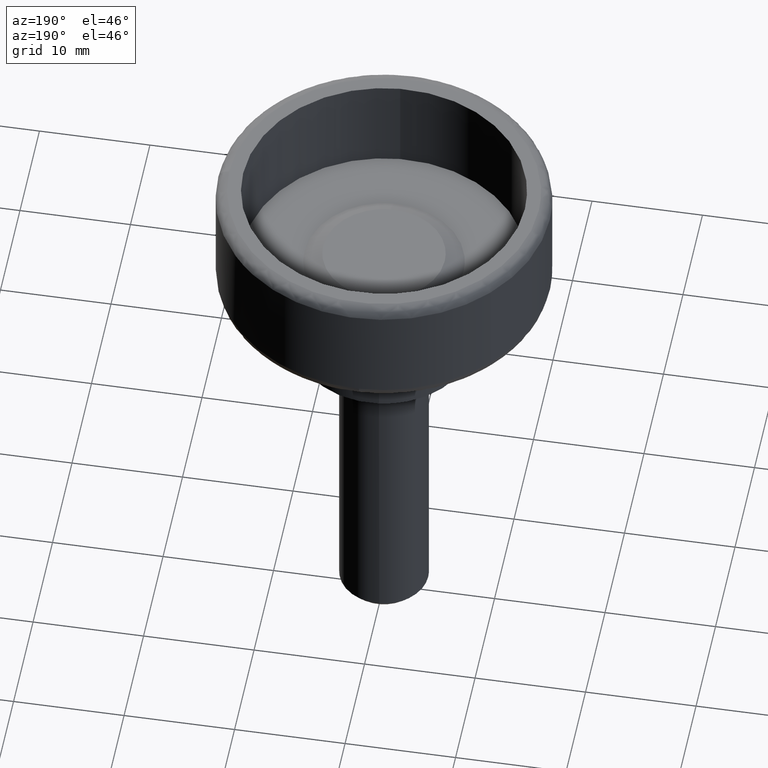
[diagram: clean part render]
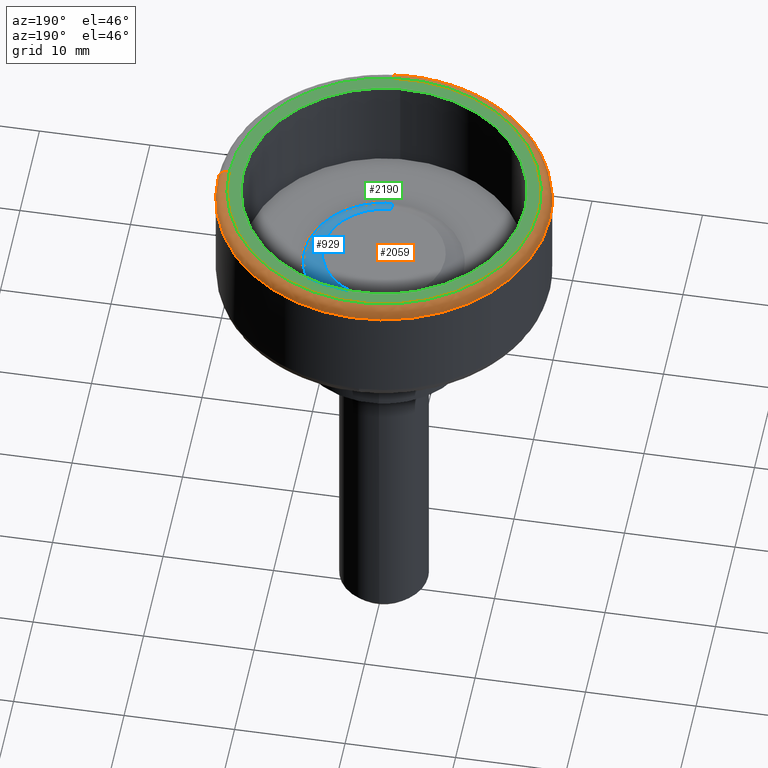
[diagram: same view with three faces highlighted in distinct colors, each labeled with its STEP entity id]
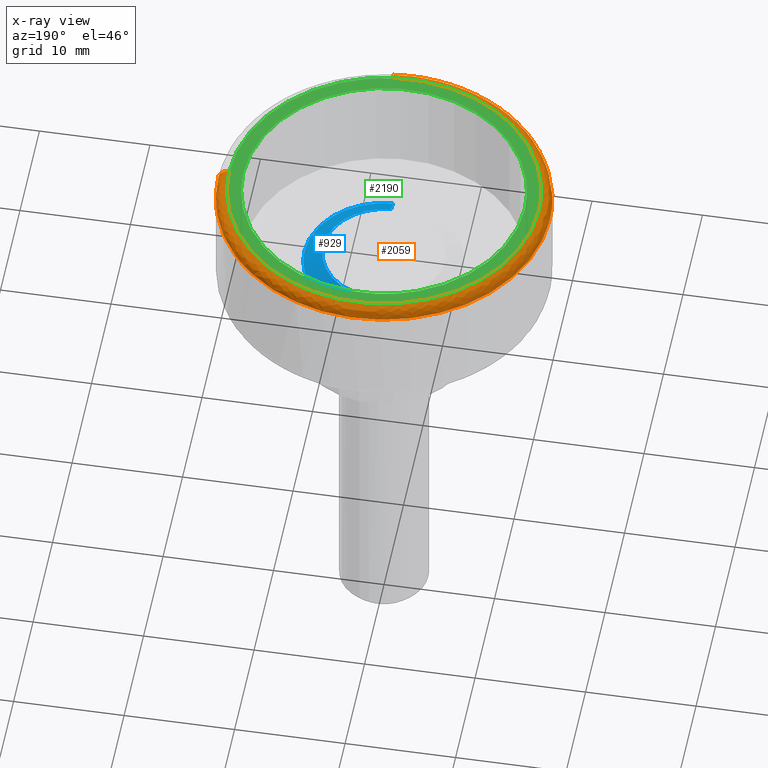
[diagram: x-ray of the same camera — body ghosted, the three highlighted faces saturated]
A machine part, auxiliary view with three faces highlighted in distinct colors.
The next image is the same camera in x-ray (body ghosted, the three faces saturated) — at least one of them is partly hidden behind the body in this view.
Their STEP definitions:

[orange] entity #2059 — the highlighted face is a freeform B-spline surface patch.
#1614=CARTESIAN_POINT('',(-11.358575083917650,9.797079772207848,18.500000000000000));
#1615=VERTEX_POINT('',#1614);
#1621=CARTESIAN_POINT('',(15.0,8.658941E-016,18.500000000025519));
#1622=VERTEX_POINT('',#1621);
#1623=CARTESIAN_POINT('',(-11.358575083917653,9.797079772207848,18.500000000000000));
#1624=CARTESIAN_POINT('',(-6.870915484126456,14.999999999999998,18.500000000000000));
#1625=CARTESIAN_POINT('',(0.0,15.0,18.500000000000000));
#1626=CARTESIAN_POINT('',(14.999999999999996,14.999999999999996,18.500000000000004));
#1627=CARTESIAN_POINT('',(15.0,8.658941E-016,18.500000000025519));
#1635=(BOUNDED_CURVE()B_SPLINE_CURVE(2,(#1623,#1624,#1625,#1626,#1627),.UNSPECIFIED.,.F.,.U.)B_SPLINE_CURVE_WITH_KNOTS((3,2,3),(0.113878074914717,0.250000000000000,0.500000000000000),.UNSPECIFIED.)CURVE()GEOMETRIC_REPRESENTATION_ITEM()RATIONAL_B_SPLINE_CURVE((0.854712753032375,0.840523244842751,1.0,0.707106781186547,1.0))REPRESENTATION_ITEM(''));
#1636=EDGE_CURVE('',#1615,#1622,#1635,.T.);
#1638=CARTESIAN_POINT('',(1.731963439911508,-14.899674581775599,18.500000000022730));
#1639=VERTEX_POINT('',#1638);
#1653=CARTESIAN_POINT('',(-9.131419963642561,-11.900301233480880,18.500000000000000));
#1654=VERTEX_POINT('',#1653);
#1655=CARTESIAN_POINT('',(1.731963439911508,-14.899674581775599,18.500000000022730));
#1656=CARTESIAN_POINT('',(0.868887436473609,-14.999999999999996,18.499999999999996));
#1657=CARTESIAN_POINT('',(0.0,-15.0,18.500000000000000));
#1658=CARTESIAN_POINT('',(-5.091812848703743,-15.000000000000004,18.500000000000004));
#1659=CARTESIAN_POINT('',(-9.131419963642561,-11.900301233480885,18.500000000000004));
#1667=(BOUNDED_CURVE()B_SPLINE_CURVE(2,(#1655,#1656,#1657,#1658,#1659),.UNSPECIFIED.,.F.,.U.)B_SPLINE_CURVE_WITH_KNOTS((3,2,3),(0.729999999999877,0.750000000000000,0.855220491655621),.UNSPECIFIED.)CURVE()GEOMETRIC_REPRESENTATION_ITEM()RATIONAL_B_SPLINE_CURVE((0.956886118190418,0.976568542494780,1.0,0.876726526055405,0.857220216403183))REPRESENTATION_ITEM(''));
#1668=EDGE_CURVE('',#1639,#1654,#1667,.T.);
#1774=CARTESIAN_POINT('',(-15.0,0.0,18.500000000000000));
#1775=VERTEX_POINT('',#1774);
#1776=CARTESIAN_POINT('',(-9.131419963642561,-11.900301233480885,18.500000000000004));
#1777=CARTESIAN_POINT('',(-15.000000000000005,-7.397182543387690,18.499999999999996));
#1778=CARTESIAN_POINT('',(-15.0,0.0,18.500000000000000));
#1786=(BOUNDED_CURVE()B_SPLINE_CURVE(2,(#1776,#1777,#1778),.UNSPECIFIED.,.F.,.U.)B_SPLINE_CURVE_WITH_KNOTS((3,3),(0.855220491655621,1.0),.UNSPECIFIED.)CURVE()GEOMETRIC_REPRESENTATION_ITEM()RATIONAL_B_SPLINE_CURVE((0.857220216403183,0.830380255131142,1.0))REPRESENTATION_ITEM(''));
#1787=EDGE_CURVE('',#1654,#1775,#1786,.T.);
#1789=CARTESIAN_POINT('',(-15.0,0.0,18.500000000000000));
#1790=CARTESIAN_POINT('',(-14.999999999999998,5.575270400848212,18.500000000000000));
#1791=CARTESIAN_POINT('',(-11.358575083917653,9.797079772207848,18.500000000000004));
#1799=(BOUNDED_CURVE()B_SPLINE_CURVE(2,(#1789,#1790,#1791),.UNSPECIFIED.,.F.,.U.)B_SPLINE_CURVE_WITH_KNOTS((3,3),(0.0,0.113878074914717),.UNSPECIFIED.)CURVE()GEOMETRIC_REPRESENTATION_ITEM()RATIONAL_B_SPLINE_CURVE((1.0,0.866583536343797,0.854712753032375))REPRESENTATION_ITEM(''));
#1800=EDGE_CURVE('',#1775,#1615,#1799,.T.);
#1956=CARTESIAN_POINT('',(1.608490085502505,-13.837475925613678,19.497592317910893));
#1957=CARTESIAN_POINT('',(0.806943602645560,-13.930648956423317,19.497592317910883));
#1958=CARTESIAN_POINT('',(1.705956E-015,-13.930648956423312,19.497592317910890));
#1959=CARTESIAN_POINT('',(-13.930648956423306,-13.930648956423312,19.497592317910886));
#1960=CARTESIAN_POINT('',(-13.930648956423312,-2.558934E-015,19.497592317910890));
#1961=CARTESIAN_POINT('',(-13.930648956423312,13.930648956423306,19.497592317910886));
#1962=CARTESIAN_POINT('',(-3.411912E-015,13.930648956423312,19.497592317910890));
#1963=CARTESIAN_POINT('',(13.930648956423305,13.930648956423312,19.497592317910886));
#1964=CARTESIAN_POINT('',(13.930648956423312,4.264890E-015,19.497592317910890));
#1965=CARTESIAN_POINT('',(1.740937863660567,-14.976894165229773,19.577336230795776));
#1966=CARTESIAN_POINT('',(0.873389699039046,-15.077739335909104,19.577336230795790));
#1967=CARTESIAN_POINT('',(1.846430E-015,-15.077739335909094,19.577336230795765));
#1968=CARTESIAN_POINT('',(-15.077739335909094,-15.077739335909097,19.577336230795773));
#1969=CARTESIAN_POINT('',(-15.077739335909094,-2.769644E-015,19.577336230795765));
#1970=CARTESIAN_POINT('',(-15.077739335909097,15.077739335909092,19.577336230795773));
#1971=CARTESIAN_POINT('',(-3.692859E-015,15.077739335909094,19.577336230795765));
#1972=CARTESIAN_POINT('',(15.077739335909092,15.077739335909097,19.577336230795773));
#1973=CARTESIAN_POINT('',(15.077739335909094,4.616074E-015,19.577336230795765));
#1974=CARTESIAN_POINT('',(1.731680755297319,-14.897257358468101,18.430275763643074));
#1975=CARTESIAN_POINT('',(0.868745614229294,-14.997566303994097,18.430275763643056));
#1976=CARTESIAN_POINT('',(1.836611E-015,-14.997566303994093,18.430275763643053));
#1977=CARTESIAN_POINT('',(-14.997566303994088,-14.997566303994089,18.430275763643053));
#1978=CARTESIAN_POINT('',(-14.997566303994093,-2.754917E-015,18.430275763643053));
#1979=CARTESIAN_POINT('',(-14.997566303994089,14.997566303994088,18.430275763643053));
#1980=CARTESIAN_POINT('',(-3.673223E-015,14.997566303994093,18.430275763643053));
#1981=CARTESIAN_POINT('',(14.997566303994084,14.997566303994093,18.430275763643053));
#1982=CARTESIAN_POINT('',(14.997566303994093,4.591529E-015,18.430275763643053));
#1990=(BOUNDED_SURFACE()B_SPLINE_SURFACE(2,2,((#1956,#1965,#1974),(#1957,#1966,#1975),(#1958,#1967,#1976),(#1959,#1968,#1977),(#1960,#1969,#1978),(#1961,#1970,#1979),(#1962,#1971,#1980),(#1963,#1972,#1981),(#1964,#1973,#1982)),.UNSPECIFIED.,.F.,.F.,.U.)B_SPLINE_SURFACE_WITH_KNOTS((3,2,2,2,3),(3,3),(0.0,1.987900621213733,26.836682084030070,51.685463546846400,76.534245009662726),(0.0,1.822370955941204),.UNSPECIFIED.)GEOMETRIC_REPRESENTATION_ITEM()RATIONAL_B_SPLINE_SURFACE(((0.876475968511781,0.573569834607657,0.871620865425741),(0.894504402179793,0.585367723070879,0.889549433373434),(0.915966819314443,0.599412825832915,0.910892962767396),(0.647686349279116,0.423848873876645,0.644098590907931),(0.915966819314443,0.599412825832915,0.910892962767396),(0.647686349279116,0.423848873876645,0.644098590907931),(0.915966819314443,0.599412825832915,0.910892962767396),(0.647686349279116,0.423848873876645,0.644098590907931),(0.915966819314443,0.599412825832915,0.910892962767396)))REPRESENTATION_ITEM('')SURFACE());
#1991=ORIENTED_EDGE('',*,*,#1787,.F.);
#1992=ORIENTED_EDGE('',*,*,#1668,.F.);
#1993=CARTESIAN_POINT('',(1.616499210730571,-13.906362944056070,19.500000000000000));
#1994=VERTEX_POINT('',#1993);
#1995=CARTESIAN_POINT('',(1.616499210730571,-13.906362944056070,19.500000000000000));
#1996=CARTESIAN_POINT('',(1.731963439900862,-14.899674581731063,19.499999997849404));
#1997=CARTESIAN_POINT('',(1.731963439911508,-14.899674581775601,18.500000000022734));
#2005=(BOUNDED_CURVE()B_SPLINE_CURVE(2,(#1995,#1996,#1997),.UNSPECIFIED.,.F.,.U.)B_SPLINE_CURVE_WITH_KNOTS((3,3),(-1.736413118846382,-0.276558718062040),.UNSPECIFIED.)CURVE()GEOMETRIC_REPRESENTATION_ITEM()RATIONAL_B_SPLINE_CURVE((0.850203275535754,0.599621899597622,0.845789311881698))REPRESENTATION_ITEM(''));
#2006=EDGE_CURVE('',#1994,#1639,#2005,.T.);
#2007=ORIENTED_EDGE('',*,*,#2006,.F.);
#2008=CARTESIAN_POINT('',(-14.0,0.0,19.500000000000000));
#2009=VERTEX_POINT('',#2008);
#2010=CARTESIAN_POINT('',(1.616499210730571,-13.906362944056072,19.500000000000007));
#2011=CARTESIAN_POINT('',(0.810961607397933,-14.0,19.500000000000004));
#2012=CARTESIAN_POINT('',(0.0,-14.0,19.500000000000000));
#2013=CARTESIAN_POINT('',(-13.999999999999998,-13.999999999999998,19.500000000000007));
#2014=CARTESIAN_POINT('',(-14.0,0.0,19.500000000000000));
#2022=(BOUNDED_CURVE()B_SPLINE_CURVE(2,(#2010,#2011,#2012,#2013,#2014),.UNSPECIFIED.,.F.,.U.)B_SPLINE_CURVE_WITH_KNOTS((3,2,3),(0.729999999999334,0.750000000000000,1.0),.UNSPECIFIED.)CURVE()GEOMETRIC_REPRESENTATION_ITEM()RATIONAL_B_SPLINE_CURVE((0.956886118189349,0.976568542494143,1.0,0.707106781186547,1.0))REPRESENTATION_ITEM(''));
#2023=EDGE_CURVE('',#1994,#2009,#2022,.T.);
#2024=ORIENTED_EDGE('',*,*,#2023,.T.);
#2025=CARTESIAN_POINT('',(14.000000000088900,6.587210E-017,19.500000000000000));
#2026=VERTEX_POINT('',#2025);
#2027=CARTESIAN_POINT('',(-14.0,0.0,19.500000000000000));
#2028=CARTESIAN_POINT('',(-13.999999999999998,13.999999999999998,19.500000000000007));
#2029=CARTESIAN_POINT('',(0.0,14.0,19.500000000000000));
#2030=CARTESIAN_POINT('',(13.999999999999998,13.999999999999998,19.500000000000007));
#2031=CARTESIAN_POINT('',(14.000000000088900,6.587210E-017,19.500000000000000));
#2039=(BOUNDED_CURVE()B_SPLINE_CURVE(2,(#2027,#2028,#2029,#2030,#2031),.UNSPECIFIED.,.F.,.U.)B_SPLINE_CURVE_WITH_KNOTS((3,2,3),(0.0,0.250000000000000,0.500000000000000),.UNSPECIFIED.)CURVE()GEOMETRIC_REPRESENTATION_ITEM()RATIONAL_B_SPLINE_CURVE((1.0,0.707106781186547,1.0,0.707106781186547,1.0))REPRESENTATION_ITEM(''));
#2040=EDGE_CURVE('',#2009,#2026,#2039,.T.);
#2041=ORIENTED_EDGE('',*,*,#2040,.T.);
#2042=CARTESIAN_POINT('',(14.000000000088901,6.587210E-017,19.499999999999996));
#2043=CARTESIAN_POINT('',(14.999999999948944,1.408176E-015,19.499999999644398));
#2044=CARTESIAN_POINT('',(14.999999999999998,8.658941E-016,18.500000000025526));
#2052=(BOUNDED_CURVE()B_SPLINE_CURVE(2,(#2042,#2043,#2044),.UNSPECIFIED.,.F.,.U.)B_SPLINE_CURVE_WITH_KNOTS((3,3),(-1.736413120704137,-0.276558718067789),.UNSPECIFIED.)CURVE()GEOMETRIC_REPRESENTATION_ITEM()RATIONAL_B_SPLINE_CURVE((0.888510408930513,0.626638727311823,0.883897567120141))REPRESENTATION_ITEM(''));
#2053=EDGE_CURVE('',#2026,#1622,#2052,.T.);
#2054=ORIENTED_EDGE('',*,*,#2053,.T.);
#2055=ORIENTED_EDGE('',*,*,#1636,.F.);
#2056=ORIENTED_EDGE('',*,*,#1800,.F.);
#2057=EDGE_LOOP('',(#1991,#1992,#2007,#2024,#2041,#2054,#2055,#2056));
#2058=FACE_OUTER_BOUND('',#2057,.T.);
#2059=ADVANCED_FACE('',(#2058),#1990,.T.);

[blue] entity #929 — the highlighted face is a freeform B-spline surface patch.
#827=CARTESIAN_POINT('',(-0.644171835639259,5.419349490129707,11.525000000000006));
#828=CARTESIAN_POINT('',(-0.489072381541763,5.437785411310763,11.525000000000002));
#829=CARTESIAN_POINT('',(-0.333172404511482,5.447320662387335,11.525000000000000));
#830=CARTESIAN_POINT('',(5.114148257875854,5.780493066898817,11.525000000000002));
#831=CARTESIAN_POINT('',(5.447320662387335,0.333172404511482,11.525000000000000));
#832=CARTESIAN_POINT('',(5.780493066898817,-5.114148257875854,11.525000000000002));
#833=CARTESIAN_POINT('',(0.333172404511482,-5.447320662387335,11.525000000000000));
#834=CARTESIAN_POINT('',(-0.854988355875896,7.192926567310616,10.474375000000004));
#835=CARTESIAN_POINT('',(-0.649129887809731,7.217395966727942,10.474374999999997));
#836=CARTESIAN_POINT('',(-0.442208911654458,7.230051795793695,10.474375000000000));
#837=CARTESIAN_POINT('',(6.787842884139237,7.672260707448152,10.474374999999998));
#838=CARTESIAN_POINT('',(7.230051795793695,0.442208911654458,10.474375000000000));
#839=CARTESIAN_POINT('',(7.672260707448152,-6.787842884139237,10.474374999999998));
#840=CARTESIAN_POINT('',(0.442208911654458,-7.230051795793695,10.474375000000000));
#848=(BOUNDED_SURFACE()B_SPLINE_SURFACE(2,1,((#827,#834),(#828,#835),(#829,#836),(#830,#837),(#831,#838),(#832,#839),(#833,#840)),.UNSPECIFIED.,.F.,.F.,.U.)B_SPLINE_SURFACE_WITH_KNOTS((3,2,2,3),(2,2),(0.0,0.480061092383547,12.481588401972200,24.483115711560849),(0.0,2.072156399630895),.UNSPECIFIED.)GEOMETRIC_REPRESENTATION_ITEM()RATIONAL_B_SPLINE_SURFACE(((0.977505800795127,0.977505800795127),(0.988284271247462,0.988284271247462),(1.0,1.0),(0.707106781186548,0.707106781186548),(1.0,1.0),(0.707106781186548,0.707106781186548),(1.0,1.0)))REPRESENTATION_ITEM('')SURFACE());
#849=CARTESIAN_POINT('',(-0.649188293313026,5.461552396483706,11.499999998945910));
#850=VERTEX_POINT('',#849);
#851=CARTESIAN_POINT('',(5.500000000000000,0.0,11.500000000000000));
#852=VERTEX_POINT('',#851);
#853=CARTESIAN_POINT('',(-0.649188293313026,5.461552396483706,11.499999998945905));
#854=CARTESIAN_POINT('',(-0.325732660601164,5.499999999999999,11.500000000000005));
#855=CARTESIAN_POINT('',(0.0,5.500000000000000,11.500000000000000));
#856=CARTESIAN_POINT('',(5.500000000000001,5.500000000000001,11.500000000000000));
#857=CARTESIAN_POINT('',(5.500000000000000,0.0,11.500000000000000));
#865=(BOUNDED_CURVE()B_SPLINE_CURVE(2,(#853,#854,#855,#856,#857),.UNSPECIFIED.,.F.,.U.)B_SPLINE_CURVE_WITH_KNOTS((3,2,3),(0.229562473361583,0.250000000000000,0.500000000000000),.UNSPECIFIED.)CURVE()GEOMETRIC_REPRESENTATION_ITEM()RATIONAL_B_SPLINE_CURVE((0.956026753885919,0.976055948153153,1.0,0.707106781186548,1.0))REPRESENTATION_ITEM(''));
#866=EDGE_CURVE('',#850,#852,#865,.T.);
#867=ORIENTED_EDGE('',*,*,#866,.T.);
#868=CARTESIAN_POINT('',(0.335766967568114,-5.489741391331091,11.499999999989109));
#869=VERTEX_POINT('',#868);
#870=CARTESIAN_POINT('',(5.500000000000000,0.0,11.500000000000000));
#871=CARTESIAN_POINT('',(5.500000000000000,-5.173883367744748,11.499999999999998));
#872=CARTESIAN_POINT('',(0.335766967568114,-5.489741391331092,11.499999999989111));
#880=(BOUNDED_CURVE()B_SPLINE_CURVE(2,(#870,#871,#872),.UNSPECIFIED.,.F.,.U.)B_SPLINE_CURVE_WITH_KNOTS((3,3),(0.500000000000000,0.739332962234093),.UNSPECIFIED.)CURVE()GEOMETRIC_REPRESENTATION_ITEM()RATIONAL_B_SPLINE_CURVE((1.0,0.719603993292392,0.976072041656324))REPRESENTATION_ITEM(''));
#881=EDGE_CURVE('',#852,#869,#880,.T.);
#882=ORIENTED_EDGE('',*,*,#881,.T.);
#883=CARTESIAN_POINT('',(0.439549484806871,-7.186570548650710,10.499999999986610));
#884=VERTEX_POINT('',#883);
#885=CARTESIAN_POINT('',(0.335766967568114,-5.489741391331091,11.499999999989109));
#886=CARTESIAN_POINT('',(0.439549484806871,-7.186570548650710,10.499999999986610));
#887=QUASI_UNIFORM_CURVE('',1,(#885,#886),.UNSPECIFIED.,.F.,.U.);
#888=EDGE_CURVE('',#869,#884,#887,.T.);
#889=ORIENTED_EDGE('',*,*,#888,.T.);
#890=CARTESIAN_POINT('',(7.200000000000000,0.0,10.500000000000000));
#891=VERTEX_POINT('',#890);
#892=CARTESIAN_POINT('',(7.200000000000000,0.0,10.500000000000000));
#893=CARTESIAN_POINT('',(7.200000000000001,-6.773083681429209,10.500000000000002));
#894=CARTESIAN_POINT('',(0.439549484806871,-7.186570548650710,10.499999999986612));
#902=(BOUNDED_CURVE()B_SPLINE_CURVE(2,(#892,#893,#894),.UNSPECIFIED.,.F.,.U.)B_SPLINE_CURVE_WITH_KNOTS((3,3),(0.500000000000000,0.739332962234549),.UNSPECIFIED.)CURVE()GEOMETRIC_REPRESENTATION_ITEM()RATIONAL_B_SPLINE_CURVE((1.0,0.719603993291858,0.976072041657300))REPRESENTATION_ITEM(''));
#903=EDGE_CURVE('',#891,#884,#902,.T.);
#904=ORIENTED_EDGE('',*,*,#903,.F.);
#905=CARTESIAN_POINT('',(-0.849846489675516,7.149668589821403,10.499999999988050));
#906=VERTEX_POINT('',#905);
#907=CARTESIAN_POINT('',(-0.849846489675516,7.149668589821403,10.499999999988045));
#908=CARTESIAN_POINT('',(-0.426413661639736,7.200000000000001,10.500000000000004));
#909=CARTESIAN_POINT('',(0.0,7.200000000000000,10.500000000000000));
#910=CARTESIAN_POINT('',(7.200000000000000,7.200000000000000,10.500000000000000));
#911=CARTESIAN_POINT('',(7.200000000000000,0.0,10.500000000000000));
#919=(BOUNDED_CURVE()B_SPLINE_CURVE(2,(#907,#908,#909,#910,#911),.UNSPECIFIED.,.F.,.U.)B_SPLINE_CURVE_WITH_KNOTS((3,2,3),(0.229562473508815,0.250000000000000,0.500000000000000),.UNSPECIFIED.)CURVE()GEOMETRIC_REPRESENTATION_ITEM()RATIONAL_B_SPLINE_CURVE((0.956026754174500,0.976055948325646,1.0,0.707106781186547,1.0))REPRESENTATION_ITEM(''));
#920=EDGE_CURVE('',#906,#891,#919,.T.);
#921=ORIENTED_EDGE('',*,*,#920,.F.);
#922=CARTESIAN_POINT('',(-0.649188293313026,5.461552396483706,11.499999998945910));
#923=CARTESIAN_POINT('',(-0.849846489675516,7.149668589821403,10.499999999988050));
#924=QUASI_UNIFORM_CURVE('',1,(#922,#923),.UNSPECIFIED.,.F.,.U.);
#925=EDGE_CURVE('',#850,#906,#924,.T.);
#926=ORIENTED_EDGE('',*,*,#925,.F.);
#927=EDGE_LOOP('',(#867,#882,#889,#904,#921,#926));
#928=FACE_OUTER_BOUND('',#927,.T.);
#929=ADVANCED_FACE('',(#928),#848,.T.);

[green] entity #2190 — the highlighted face is a freeform B-spline surface patch.
#1069=CARTESIAN_POINT('',(0.778357585810537,-12.726219370594050,19.500000000000000));
#1070=VERTEX_POINT('',#1069);
#1076=CARTESIAN_POINT('',(12.750000000000000,0.0,19.500000000000000));
#1077=VERTEX_POINT('',#1076);
#1078=CARTESIAN_POINT('',(12.750000000000000,0.0,19.500000000000000));
#1079=CARTESIAN_POINT('',(12.750000000000000,-11.994013016430237,19.499999999999996));
#1080=CARTESIAN_POINT('',(0.778357585810537,-12.726219370594050,19.500000000000004));
#1088=(BOUNDED_CURVE()B_SPLINE_CURVE(2,(#1078,#1079,#1080),.UNSPECIFIED.,.F.,.U.)B_SPLINE_CURVE_WITH_KNOTS((3,3),(0.500000000000000,0.739333115360176),.UNSPECIFIED.)CURVE()GEOMETRIC_REPRESENTATION_ITEM()RATIONAL_B_SPLINE_CURVE((1.0,0.719603813894027,0.976072369834887))REPRESENTATION_ITEM(''));
#1089=EDGE_CURVE('',#1077,#1070,#1088,.T.);
#1091=CARTESIAN_POINT('',(-1.504926199215162,12.660872684566741,19.500000000000000));
#1092=VERTEX_POINT('',#1091);
#1093=CARTESIAN_POINT('',(-1.504926199215163,12.660872684566746,19.500000000000000));
#1094=CARTESIAN_POINT('',(-0.755102324826892,12.750000000000000,19.500000000000000));
#1095=CARTESIAN_POINT('',(0.0,12.750000000000000,19.500000000000000));
#1096=CARTESIAN_POINT('',(12.749999999999998,12.749999999999998,19.500000000000004));
#1097=CARTESIAN_POINT('',(12.750000000000000,0.0,19.500000000000000));
#1105=(BOUNDED_CURVE()B_SPLINE_CURVE(2,(#1093,#1094,#1095,#1096,#1097),.UNSPECIFIED.,.F.,.U.)B_SPLINE_CURVE_WITH_KNOTS((3,2,3),(0.229562610906883,0.250000000000000,0.500000000000000),.UNSPECIFIED.)CURVE()GEOMETRIC_REPRESENTATION_ITEM()RATIONAL_B_SPLINE_CURVE((0.956027023480514,0.976056109297496,1.0,0.707106781186548,1.0))REPRESENTATION_ITEM(''));
#1106=EDGE_CURVE('',#1092,#1077,#1105,.T.);
#1150=CARTESIAN_POINT('',(-12.750000000000000,0.0,19.500000000000000));
#1151=VERTEX_POINT('',#1150);
#1152=CARTESIAN_POINT('',(-12.750000000000000,0.0,19.500000000000000));
#1153=CARTESIAN_POINT('',(-12.749999999999998,11.324234476721555,19.500000000000004));
#1154=CARTESIAN_POINT('',(-1.504926199215163,12.660872684566746,19.500000000000000));
#1162=(BOUNDED_CURVE()B_SPLINE_CURVE(2,(#1152,#1153,#1154),.UNSPECIFIED.,.F.,.U.)B_SPLINE_CURVE_WITH_KNOTS((3,3),(0.0,0.229562610906883),.UNSPECIFIED.)CURVE()GEOMETRIC_REPRESENTATION_ITEM()RATIONAL_B_SPLINE_CURVE((1.0,0.731050671889051,0.956027023480514))REPRESENTATION_ITEM(''));
#1163=EDGE_CURVE('',#1151,#1092,#1162,.T.);
#1165=CARTESIAN_POINT('',(0.778357585810537,-12.726219370594050,19.500000000000004));
#1166=CARTESIAN_POINT('',(0.389542069595348,-12.749999999999996,19.500000000000004));
#1167=CARTESIAN_POINT('',(0.0,-12.750000000000000,19.500000000000000));
#1168=CARTESIAN_POINT('',(-12.749999999999998,-12.749999999999998,19.500000000000004));
#1169=CARTESIAN_POINT('',(-12.750000000000000,0.0,19.500000000000000));
#1177=(BOUNDED_CURVE()B_SPLINE_CURVE(2,(#1165,#1166,#1167,#1168,#1169),.UNSPECIFIED.,.F.,.U.)B_SPLINE_CURVE_WITH_KNOTS((3,2,3),(0.739333115360176,0.750000000000000,1.0),.UNSPECIFIED.)CURVE()GEOMETRIC_REPRESENTATION_ITEM()RATIONAL_B_SPLINE_CURVE((0.976072369834887,0.987502967292520,1.0,0.707106781186548,1.0))REPRESENTATION_ITEM(''));
#1178=EDGE_CURVE('',#1070,#1151,#1177,.T.);
#1993=CARTESIAN_POINT('',(1.616499210730571,-13.906362944056070,19.500000000000000));
#1994=VERTEX_POINT('',#1993);
#2008=CARTESIAN_POINT('',(-14.0,0.0,19.500000000000000));
#2009=VERTEX_POINT('',#2008);
#2010=CARTESIAN_POINT('',(1.616499210730571,-13.906362944056072,19.500000000000007));
#2011=CARTESIAN_POINT('',(0.810961607397933,-14.0,19.500000000000004));
#2012=CARTESIAN_POINT('',(0.0,-14.0,19.500000000000000));
#2013=CARTESIAN_POINT('',(-13.999999999999998,-13.999999999999998,19.500000000000007));
#2014=CARTESIAN_POINT('',(-14.0,0.0,19.500000000000000));
#2022=(BOUNDED_CURVE()B_SPLINE_CURVE(2,(#2010,#2011,#2012,#2013,#2014),.UNSPECIFIED.,.F.,.U.)B_SPLINE_CURVE_WITH_KNOTS((3,2,3),(0.729999999999334,0.750000000000000,1.0),.UNSPECIFIED.)CURVE()GEOMETRIC_REPRESENTATION_ITEM()RATIONAL_B_SPLINE_CURVE((0.956886118189349,0.976568542494143,1.0,0.707106781186547,1.0))REPRESENTATION_ITEM(''));
#2023=EDGE_CURVE('',#1994,#2009,#2022,.T.);
#2025=CARTESIAN_POINT('',(14.000000000088900,6.587210E-017,19.500000000000000));
#2026=VERTEX_POINT('',#2025);
#2027=CARTESIAN_POINT('',(-14.0,0.0,19.500000000000000));
#2028=CARTESIAN_POINT('',(-13.999999999999998,13.999999999999998,19.500000000000007));
#2029=CARTESIAN_POINT('',(0.0,14.0,19.500000000000000));
#2030=CARTESIAN_POINT('',(13.999999999999998,13.999999999999998,19.500000000000007));
#2031=CARTESIAN_POINT('',(14.000000000088900,6.587210E-017,19.500000000000000));
#2039=(BOUNDED_CURVE()B_SPLINE_CURVE(2,(#2027,#2028,#2029,#2030,#2031),.UNSPECIFIED.,.F.,.U.)B_SPLINE_CURVE_WITH_KNOTS((3,2,3),(0.0,0.250000000000000,0.500000000000000),.UNSPECIFIED.)CURVE()GEOMETRIC_REPRESENTATION_ITEM()RATIONAL_B_SPLINE_CURVE((1.0,0.707106781186547,1.0,0.707106781186547,1.0))REPRESENTATION_ITEM(''));
#2040=EDGE_CURVE('',#2009,#2026,#2039,.T.);
#2079=CARTESIAN_POINT('',(14.000000000088900,6.587210E-017,19.500000000000000));
#2080=CARTESIAN_POINT('',(13.999999999999996,-12.466883811527717,19.499999999999996));
#2081=CARTESIAN_POINT('',(1.616499210730571,-13.906362944056070,19.500000000000007));
#2089=(BOUNDED_CURVE()B_SPLINE_CURVE(2,(#2079,#2080,#2081),.UNSPECIFIED.,.F.,.U.)B_SPLINE_CURVE_WITH_KNOTS((3,3),(0.500000000000000,0.729999999999333),.UNSPECIFIED.)CURVE()GEOMETRIC_REPRESENTATION_ITEM()RATIONAL_B_SPLINE_CURVE((1.0,0.730538238692405,0.956886118189347))REPRESENTATION_ITEM(''));
#2090=EDGE_CURVE('',#2026,#1994,#2089,.T.);
#2174=CARTESIAN_POINT('',(15.398599945823911,-15.398521017215710,19.500000000000000));
#2175=CARTESIAN_POINT('',(-15.398600696753530,-15.398521017215710,19.500000000000000));
#2176=CARTESIAN_POINT('',(15.398599945823911,15.398596941655770,19.500000000000000));
#2177=CARTESIAN_POINT('',(-15.398600696753530,15.398596941655770,19.500000000000000));
#2178=B_SPLINE_SURFACE_WITH_KNOTS('',1,1,((#2174,#2176),(#2175,#2177)),.UNSPECIFIED.,.F.,.F.,.U.,(2,2),(2,2),(0.0,30.797200642577440),(0.0,30.797117958871478),.UNSPECIFIED.);
#2179=ORIENTED_EDGE('',*,*,#2023,.F.);
#2180=ORIENTED_EDGE('',*,*,#2090,.F.);
#2181=ORIENTED_EDGE('',*,*,#2040,.F.);
#2182=EDGE_LOOP('',(#2179,#2180,#2181));
#2183=FACE_OUTER_BOUND('',#2182,.T.);
#2184=ORIENTED_EDGE('',*,*,#1089,.T.);
#2185=ORIENTED_EDGE('',*,*,#1178,.T.);
#2186=ORIENTED_EDGE('',*,*,#1163,.T.);
#2187=ORIENTED_EDGE('',*,*,#1106,.T.);
#2188=EDGE_LOOP('',(#2184,#2185,#2186,#2187));
#2189=FACE_BOUND('',#2188,.T.);
#2190=ADVANCED_FACE('',(#2183,#2189),#2178,.F.);